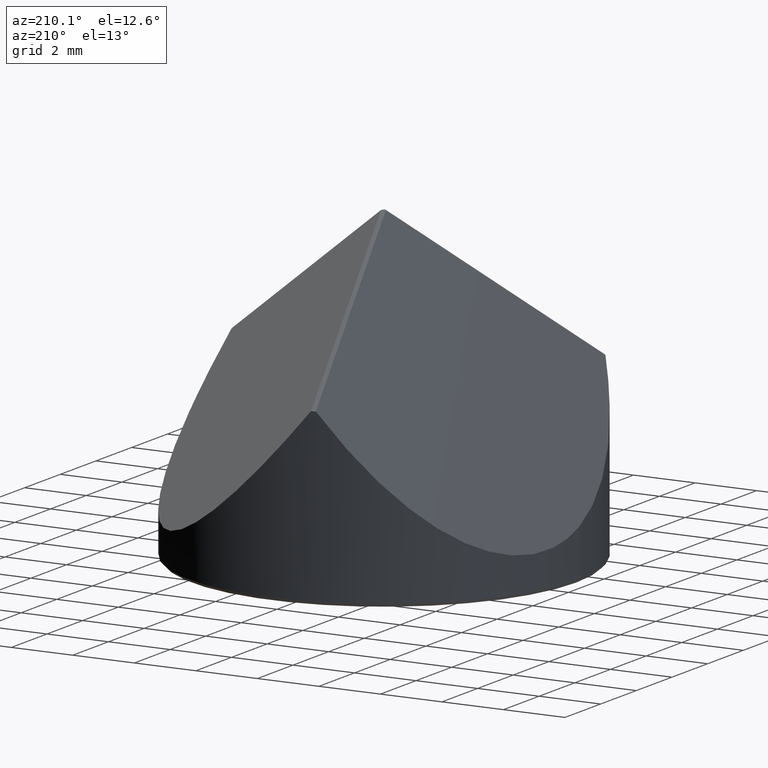
[diagram: clean part render]
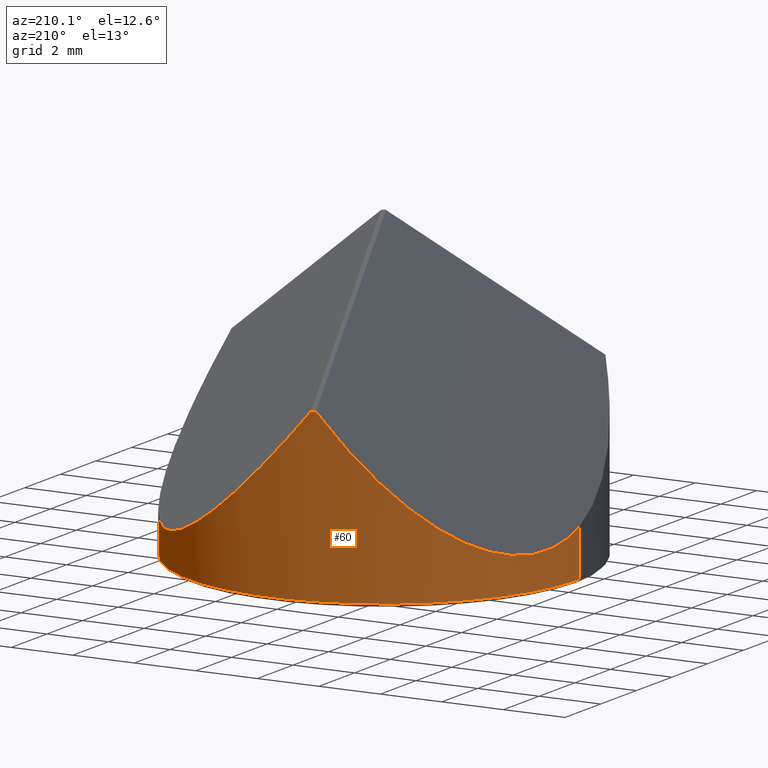
[diagram: same view with one face highlighted and labeled with its STEP entity id]
A machine part, auxiliary view. The second image highlights one B-rep face of the part: STEP entity #60.
In plain terms, the highlighted cylindrical surface (partial cylindrical patch) has radius 6.35 mm, axis along (-0, -0, -1).
Its self-contained STEP definition (entity closure, byte-faithful):
#13 = CYLINDRICAL_SURFACE ( 'NONE', #167, 6.349999999999999645 ) ;
#19 = VERTEX_POINT ( 'NONE', #351 ) ;
#22 = CARTESIAN_POINT ( 'NONE',  ( -1.240062539693429722, 6.227739951029515275, 4.913675856748689341 ) ) ;
#23 = CARTESIAN_POINT ( 'NONE',  ( -1.240062539693429722, 6.227739951029515275, 4.913675856748689341 ) ) ;
#25 = ORIENTED_EDGE ( 'NONE', *, *, #278, .T. ) ;
#44 = CARTESIAN_POINT ( 'NONE',  ( 3.004345022847746627, 7.072882950397803903, -0.3522861678321563828 ) ) ;
#45 = CARTESIAN_POINT ( 'NONE',  ( -6.349999999999998757, 3.103686174823298227, -0.4094046865415405523 ) ) ;
#47 = EDGE_CURVE ( 'NONE', #218, #137, #83, .T. ) ;
#60 = ADVANCED_FACE ( 'NONE', ( #263 ), #13, .T. ) ;
#70 = CARTESIAN_POINT ( 'NONE',  ( -6.349999999999999645, 0.000000000000000000, -0.5700000000000019496 ) ) ;
#72 = VECTOR ( 'NONE', #147, 1000.000000000000000 ) ;
#73 = CARTESIAN_POINT ( 'NONE',  ( -1.378444896918001428, 6.198579649093872490, 4.913675856748705328 ) ) ;
#75 = EDGE_CURVE ( 'NONE', #131, #189, #297, .T. ) ;
#77 = ORIENTED_EDGE ( 'NONE', *, *, #47, .T. ) ;
#83 = LINE ( 'NONE', #236, #185 ) ;
#93 = CIRCLE ( 'NONE', #191, 6.349999999999999645 ) ;
#129 = CARTESIAN_POINT ( 'NONE',  ( -1.332426640923746186, 6.208813224159672295, 4.913304656743201271 ) ) ;
#131 = VERTEX_POINT ( 'NONE', #308 ) ;
#132 = ORIENTED_EDGE ( 'NONE', *, *, #192, .F. ) ;
#137 = VERTEX_POINT ( 'NONE', #358 ) ;
#138 = EDGE_CURVE ( 'NONE', #19, #195, #188, .T. ) ;
#147 = DIRECTION ( 'NONE',  ( -0.000000000000000000, -0.000000000000000000, -1.000000000000000000 ) ) ;
#149 = DIRECTION ( 'NONE',  ( -1.000000000000000000, 0.000000000000000000, 0.000000000000000000 ) ) ;
#158 = EDGE_CURVE ( 'NONE', #19, #131, #269, .T. ) ;
#159 = CARTESIAN_POINT ( 'NONE',  ( -6.349999999999999645, 0.000000000000000000, 0.9542810377841225433 ) ) ;
#167 = AXIS2_PLACEMENT_3D ( 'NONE', #177, #233, #149 ) ;
#177 = CARTESIAN_POINT ( 'NONE',  ( 0.000000000000000000, 0.000000000000000000, 5.000000000000000000 ) ) ;
#185 = VECTOR ( 'NONE', #322, 1000.000000000000000 ) ;
#186 = CARTESIAN_POINT ( 'NONE',  ( 6.349999999999999645, 7.776507174585692163E-16, 2.805960210696957891 ) ) ;
#187 = CARTESIAN_POINT ( 'NONE',  ( -1.240062539693429722, 6.227739951029515275, 4.913675856748689341 ) ) ;
#188 =( BOUNDED_CURVE ( )  B_SPLINE_CURVE ( 3, ( #73, #129, #336, #22 ),
 .UNSPECIFIED., .F., .F. ) 
 B_SPLINE_CURVE_WITH_KNOTS ( ( 4, 4 ),
 ( 6.272049537170588884, 6.294321077188590685 ),
 .UNSPECIFIED. ) 
 CURVE ( )  GEOMETRIC_REPRESENTATION_ITEM ( )  RATIONAL_B_SPLINE_CURVE ( ( 1.000000000000000000, 0.9999586653025819283, 0.9999586653025819283, 1.000000000000000000 ) ) 
 REPRESENTATION_ITEM ( '' )  );
#189 = VERTEX_POINT ( 'NONE', #70 ) ;
#191 = AXIS2_PLACEMENT_3D ( 'NONE', #348, #288, #257 ) ;
#192 = EDGE_CURVE ( 'NONE', #218, #195, #357, .T. ) ;
#195 = VERTEX_POINT ( 'NONE', #187 ) ;
#210 = ORIENTED_EDGE ( 'NONE', *, *, #158, .F. ) ;
#218 = VERTEX_POINT ( 'NONE', #277 ) ;
#233 = DIRECTION ( 'NONE',  ( -0.000000000000000000, -0.000000000000000000, -1.000000000000000000 ) ) ;
#236 = CARTESIAN_POINT ( 'NONE',  ( 6.349999999999999645, 7.776507174585692163E-16, 5.000000000000000000 ) ) ;
#257 = DIRECTION ( 'NONE',  ( -1.000000000000000000, 0.000000000000000000, 0.000000000000000000 ) ) ;
#263 = FACE_OUTER_BOUND ( 'NONE', #367, .T. ) ;
#269 =( BOUNDED_CURVE ( )  B_SPLINE_CURVE ( 3, ( #337, #301, #45, #159 ),
 .UNSPECIFIED., .F., .F. ) 
 B_SPLINE_CURVE_WITH_KNOTS ( ( 4, 4 ),
 ( 5.247123525991986170, 6.599099828102190202 ),
 .UNSPECIFIED. ) 
 CURVE ( )  GEOMETRIC_REPRESENTATION_ITEM ( )  RATIONAL_B_SPLINE_CURVE ( ( 1.000000000000000000, 0.8533927180882582286, 0.8533927180882582286, 1.000000000000000000 ) ) 
 REPRESENTATION_ITEM ( '' )  );
#277 = CARTESIAN_POINT ( 'NONE',  ( 6.349999999999999645, 7.776507174585692163E-16, 2.805960210696957891 ) ) ;
#278 = EDGE_CURVE ( 'NONE', #137, #189, #93, .T. ) ;
#288 = DIRECTION ( 'NONE',  ( 0.000000000000000000, 0.000000000000000000, 1.000000000000000000 ) ) ;
#297 = LINE ( 'NONE', #353, #72 ) ;
#301 = CARTESIAN_POINT ( 'NONE',  ( -4.408121426120161779, 5.524837858649756406, 1.137126289191133566 ) ) ;
#303 = CARTESIAN_POINT ( 'NONE',  ( 6.350000000000001421, 4.327731766911850464, -1.281354842135791872 ) ) ;
#308 = CARTESIAN_POINT ( 'NONE',  ( -6.349999999999999645, 0.000000000000000000, 0.9542810377841225433 ) ) ;
#322 = DIRECTION ( 'NONE',  ( -0.000000000000000000, -0.000000000000000000, -1.000000000000000000 ) ) ;
#336 = CARTESIAN_POINT ( 'NONE',  ( -1.286297281772450285, 6.218533726598914235, 4.913304656743201271 ) ) ;
#337 = CARTESIAN_POINT ( 'NONE',  ( -1.378444896918001428, 6.198579649093872490, 4.913675856748705328 ) ) ;
#340 = ORIENTED_EDGE ( 'NONE', *, *, #138, .T. ) ;
#347 = ORIENTED_EDGE ( 'NONE', *, *, #75, .F. ) ;
#348 = CARTESIAN_POINT ( 'NONE',  ( 0.000000000000000000, 0.000000000000000000, -0.5700000000000019496 ) ) ;
#351 = CARTESIAN_POINT ( 'NONE',  ( -1.378444896918001428, 6.198579649093872490, 4.913675856748705328 ) ) ;
#353 = CARTESIAN_POINT ( 'NONE',  ( -6.349999999999999645, 0.000000000000000000, 5.000000000000000000 ) ) ;
#357 =( BOUNDED_CURVE ( )  B_SPLINE_CURVE ( 3, ( #186, #303, #44, #23 ),
 .UNSPECIFIED., .F., .F. ) 
 B_SPLINE_CURVE_WITH_KNOTS ( ( 4, 4 ),
 ( 5.551902276905597233, 7.319247088367184517 ),
 .UNSPECIFIED. ) 
 CURVE ( )  GEOMETRIC_REPRESENTATION_ITEM ( )  RATIONAL_B_SPLINE_CURVE ( ( 1.000000000000000000, 0.7562109254666704583, 0.7562109254666704583, 1.000000000000000000 ) ) 
 REPRESENTATION_ITEM ( '' )  );
#358 = CARTESIAN_POINT ( 'NONE',  ( 6.349999999999999645, 7.776507174585692163E-16, -0.5700000000000019496 ) ) ;
#367 = EDGE_LOOP ( 'NONE', ( #132, #77, #25, #347, #210, #340 ) ) ;